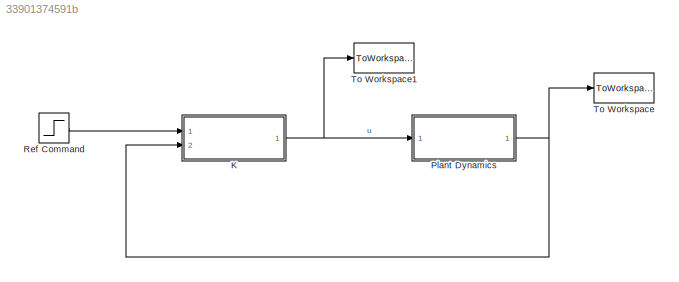
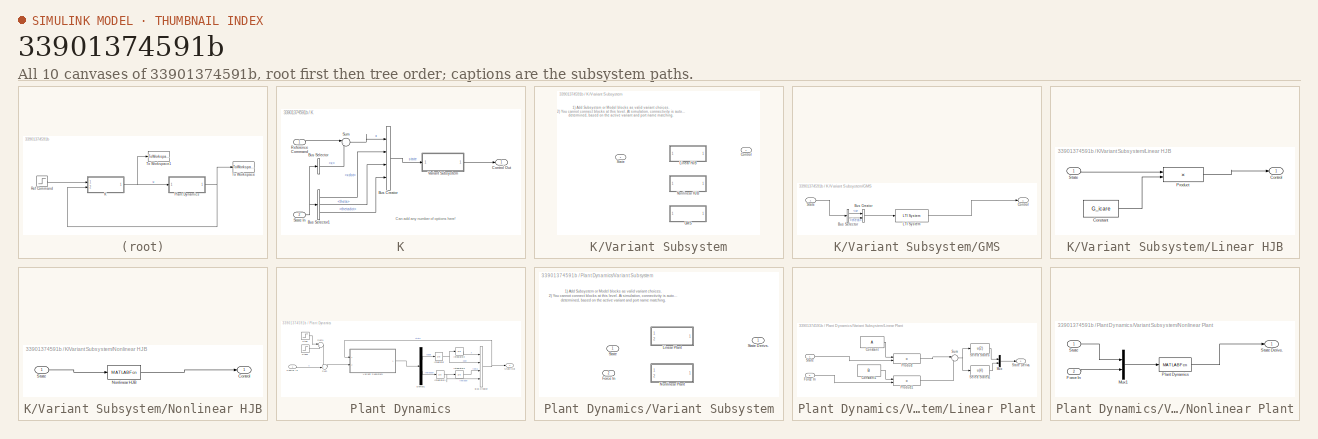
[diagram: thumbnail index - all 10 canvases of the model, root first then tree order]
MODEL slx_33901374591b
KIND model
CONFIG AbsTol = auto
CONFIG EnableMultiTasking = off
CONFIG FixedStep = auto
CONFIG MaxStep = 0.01
CONFIG MinStep = auto
CONFIG RelTol = 1e-3
CONFIG SampleTimeConstraint = Unconstrained
CONFIG SolverName = VariableStepAuto
CONFIG StartTime = 0.0
CONFIG StopTime = 30
BLOCK [SubSystem] K
  Ports = [2, 1]
  RequestExecContextInheritance = off
BLOCK [BusCreator] K/Bus Creator
  DisplayOption = bar
  InheritFromInputs = on
  Inputs = 4
  Ports = [4, 1]
BLOCK [BusSelector] K/Bus Selector
  OutputSignals = x
  Ports = [1, 1]
BLOCK [BusSelector] K/Bus Selector1
  OutputSignals = xdot,theta,thetadot
  Ports = [1, 3]
BLOCK [Outport] K/Control Out
BLOCK [Inport] K/Reference Command
BLOCK [Inport] K/State In
  Port = 2
BLOCK [Sum] K/Sum
  Inputs = |-+
  Ports = [2, 1]
BLOCK [SubSystem] K/Variant Subsystem
  Ports = [1, 1]
  RequestExecContextInheritance = off
  Variant = on
BLOCK [Outport] K/Variant Subsystem/Control
BLOCK [SubSystem] K/Variant Subsystem/GMS
  Ports = [1, 1]
  RequestExecContextInheritance = off
  VariantControl = v_gms
BLOCK [BusCreator] K/Variant Subsystem/GMS/Bus Creator
  DisplayOption = bar
  InheritFromInputs = on
  Inputs = 2
  Ports = [2, 1]
BLOCK [BusSelector] K/Variant Subsystem/GMS/Bus Selector
  OutputSignals = x,theta
  Ports = [1, 2]
BLOCK [Outport] K/Variant Subsystem/GMS/Control
BLOCK [Reference] K/Variant Subsystem/GMS/LTI System  REF=cstblocks/LTI System
  Ports = [1, 1]
  SourceBlock = cstblocks/LTI System
  SourceProductBaseCode = CT
  SourceType = LTI Block
BLOCK [Inport] K/Variant Subsystem/GMS/State
BLOCK [SubSystem] K/Variant Subsystem/Linear HJB
  Ports = [1, 1]
  RequestExecContextInheritance = off
  VariantControl = v_lin_hjb
BLOCK [Constant] K/Variant Subsystem/Linear HJB/Constant
  Value = G_icare
BLOCK [Outport] K/Variant Subsystem/Linear HJB/Control
BLOCK [Product] K/Variant Subsystem/Linear HJB/Product
  Multiplication = Matrix(*)
  Ports = [2, 1]
BLOCK [Inport] K/Variant Subsystem/Linear HJB/State
BLOCK [SubSystem] K/Variant Subsystem/Nonlinear HJB
  Ports = [1, 1]
  RequestExecContextInheritance = off
  VariantControl = v_nonlin_hjb
BLOCK [Outport] K/Variant Subsystem/Nonlinear HJB/Control
BLOCK [MATLABFcn] K/Variant Subsystem/Nonlinear HJB/Nonlinear HJB
  MATLABFcn = nln_hjb
  Ports = [1, 1]
BLOCK [Inport] K/Variant Subsystem/Nonlinear HJB/State
BLOCK [Inport] K/Variant Subsystem/State
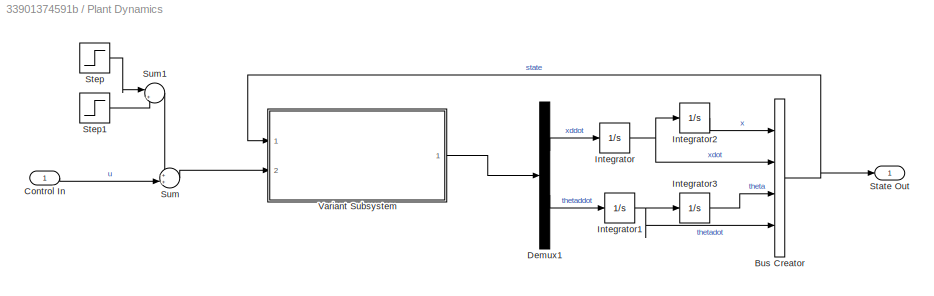
BLOCK [SubSystem] Plant Dynamics
  Ports = [1, 1]
  RequestExecContextInheritance = off
BLOCK [BusCreator] Plant Dynamics/Bus Creator
  DisplayOption = bar
  InheritFromInputs = on
  Inputs = 4
  Ports = [4, 1]
BLOCK [Inport] Plant Dynamics/Control In
BLOCK [Demux] Plant Dynamics/Demux1
  Outputs = 2
  Ports = [1, 2]
BLOCK [Integrator] Plant Dynamics/Integrator
  InitialCondition = x0(2)
  Ports = [1, 1]
BLOCK [Integrator] Plant Dynamics/Integrator1
  InitialCondition = x0(4)
  Ports = [1, 1]
BLOCK [Integrator] Plant Dynamics/Integrator2
  InitialCondition = x0(1)
  Ports = [1, 1]
BLOCK [Integrator] Plant Dynamics/Integrator3
  InitialCondition = x0(3)
  Ports = [1, 1]
BLOCK [Outport] Plant Dynamics/State Out
  VectorParamsAs1DForOutWhenUnconnected = off
BLOCK [Step] Plant Dynamics/Step
  After = dF_amp
  SampleTime = 0
  Time = 0
BLOCK [Step] Plant Dynamics/Step1
  After = dF_amp
  SampleTime = 0
  Time = dF_tf
BLOCK [Sum] Plant Dynamics/Sum
  Inputs = ++|
  Ports = [2, 1]
BLOCK [Sum] Plant Dynamics/Sum1
  Inputs = |+-
  Ports = [2, 1]
BLOCK [SubSystem] Plant Dynamics/Variant Subsystem
  Ports = [2, 1]
  RequestExecContextInheritance = off
  Variant = on
BLOCK [Inport] Plant Dynamics/Variant Subsystem/Force In
  Port = 2
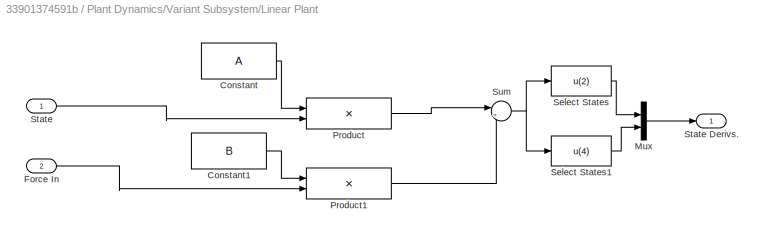
BLOCK [SubSystem] Plant Dynamics/Variant Subsystem/Linear Plant
  Ports = [2, 1]
  RequestExecContextInheritance = off
  VariantControl = v_linear_plant
BLOCK [Constant] Plant Dynamics/Variant Subsystem/Linear Plant/Constant
  Value = A
BLOCK [Constant] Plant Dynamics/Variant Subsystem/Linear Plant/Constant1
  Value = B
BLOCK [Inport] Plant Dynamics/Variant Subsystem/Linear Plant/Force In
  Port = 2
BLOCK [Mux] Plant Dynamics/Variant Subsystem/Linear Plant/Mux
  DisplayOption = bar
  Inputs = 2
  Ports = [2, 1]
BLOCK [Product] Plant Dynamics/Variant Subsystem/Linear Plant/Product
  Multiplication = Matrix(*)
  Ports = [2, 1]
BLOCK [Product] Plant Dynamics/Variant Subsystem/Linear Plant/Product1
  Multiplication = Matrix(*)
  Ports = [2, 1]
BLOCK [Fcn] Plant Dynamics/Variant Subsystem/Linear Plant/Select States
  Expr = u(2)
BLOCK [Fcn] Plant Dynamics/Variant Subsystem/Linear Plant/Select States1
  Expr = u(4)
BLOCK [Inport] Plant Dynamics/Variant Subsystem/Linear Plant/State
BLOCK [Outport] Plant Dynamics/Variant Subsystem/Linear Plant/State Derivs.
BLOCK [Sum] Plant Dynamics/Variant Subsystem/Linear Plant/Sum
  Inputs = |++
  Ports = [2, 1]
BLOCK [SubSystem] Plant Dynamics/Variant Subsystem/Nonlinear Plant
  Ports = [2, 1]
  RequestExecContextInheritance = off
  VariantControl = v_nonlinear_plant
BLOCK [Inport] Plant Dynamics/Variant Subsystem/Nonlinear Plant/Force In
  Port = 2
BLOCK [Mux] Plant Dynamics/Variant Subsystem/Nonlinear Plant/Mux1
  DisplayOption = bar
  Inputs = 2
  Ports = [2, 1]
BLOCK [MATLABFcn] Plant Dynamics/Variant Subsystem/Nonlinear Plant/Plant Dynamics
  MATLABFcn = cip_dyn
  Ports = [1, 1]
BLOCK [Inport] Plant Dynamics/Variant Subsystem/Nonlinear Plant/State
BLOCK [Outport] Plant Dynamics/Variant Subsystem/Nonlinear Plant/State Derivs.
BLOCK [Inport] Plant Dynamics/Variant Subsystem/State
BLOCK [Outport] Plant Dynamics/Variant Subsystem/State Derivs.
BLOCK [Step] Ref Command
  After = r
  SampleTime = 0
  Time = 0
BLOCK [ToWorkspace] To Workspace
  FixptAsFi = on
  MaxDataPoints = inf
  Ports = [1]
  SampleTime = -1
  SaveFormat = Timeseries
  VariableName = xvec
BLOCK [ToWorkspace] To Workspace1
  FixptAsFi = on
  MaxDataPoints = inf
  Ports = [1]
  SampleTime = -1
  SaveFormat = Timeseries
  VariableName = uvec
ANNOTATION K: Can add any number of options here!
ANNOTATION K/Variant Subsystem: 1) Add Subsystem or Model blocks as valid variant choices. 2) You cannot connect blocks at this level. At simulation, connectivity is automatically determined, based on the active variant and port name matching.
ANNOTATION Plant Dynamics/Variant Subsystem: 1) Add Subsystem or Model blocks as valid variant choices. 2) You cannot connect blocks at this level. At simulation, connectivity is automatically determined, based on the active variant and port name matching.
LINE K/Bus Creator:1 -> K/Variant Subsystem:1
LINE K/Bus Selector1:1 -> K/Bus Creator:2
LINE K/Bus Selector1:2 -> K/Bus Creator:3
LINE K/Bus Selector1:3 -> K/Bus Creator:4
LINE K/Bus Selector:1 -> K/Sum:2
LINE K/Reference Command:1 -> K/Sum:1
NET K/State In:1 -> K/Bus Selector1:1, K/Bus Selector:1
LINE K/Sum:1 -> K/Bus Creator:1
LINE K/Variant Subsystem/GMS/Bus Creator:1 -> K/Variant Subsystem/GMS/LTI System:1
LINE K/Variant Subsystem/GMS/Bus Selector:1 -> K/Variant Subsystem/GMS/Bus Creator:1
LINE K/Variant Subsystem/GMS/Bus Selector:2 -> K/Variant Subsystem/GMS/Bus Creator:2
LINE K/Variant Subsystem/GMS/LTI System:1 -> K/Variant Subsystem/GMS/Control:1
LINE K/Variant Subsystem/GMS/State:1 -> K/Variant Subsystem/GMS/Bus Selector:1
LINE K/Variant Subsystem/Linear HJB/Constant:1 -> K/Variant Subsystem/Linear HJB/Product:2
LINE K/Variant Subsystem/Linear HJB/Product:1 -> K/Variant Subsystem/Linear HJB/Control:1
LINE K/Variant Subsystem/Linear HJB/State:1 -> K/Variant Subsystem/Linear HJB/Product:1
LINE K/Variant Subsystem/Nonlinear HJB/Nonlinear HJB:1 -> K/Variant Subsystem/Nonlinear HJB/Control:1
LINE K/Variant Subsystem/Nonlinear HJB/State:1 -> K/Variant Subsystem/Nonlinear HJB/Nonlinear HJB:1
LINE K/Variant Subsystem:1 -> K/Control Out:1
NET K:1 -> Plant Dynamics:1, To Workspace1:1
NET Plant Dynamics/Bus Creator:1 -> Plant Dynamics/State Out:1, Plant Dynamics/Variant Subsystem:1
LINE Plant Dynamics/Control In:1 -> Plant Dynamics/Sum:2
LINE Plant Dynamics/Demux1:1 -> Plant Dynamics/Integrator:1
LINE Plant Dynamics/Demux1:2 -> Plant Dynamics/Integrator1:1
NET Plant Dynamics/Integrator1:1 -> Plant Dynamics/Bus Creator:4, Plant Dynamics/Integrator3:1
LINE Plant Dynamics/Integrator2:1 -> Plant Dynamics/Bus Creator:1
LINE Plant Dynamics/Integrator3:1 -> Plant Dynamics/Bus Creator:3
NET Plant Dynamics/Integrator:1 -> Plant Dynamics/Bus Creator:2, Plant Dynamics/Integrator2:1
LINE Plant Dynamics/Step1:1 -> Plant Dynamics/Sum1:2
LINE Plant Dynamics/Step:1 -> Plant Dynamics/Sum1:1
LINE Plant Dynamics/Sum1:1 -> Plant Dynamics/Sum:1
LINE Plant Dynamics/Sum:1 -> Plant Dynamics/Variant Subsystem:2
LINE Plant Dynamics/Variant Subsystem/Linear Plant/Constant1:1 -> Plant Dynamics/Variant Subsystem/Linear Plant/Product1:1
LINE Plant Dynamics/Variant Subsystem/Linear Plant/Constant:1 -> Plant Dynamics/Variant Subsystem/Linear Plant/Product:1
LINE Plant Dynamics/Variant Subsystem/Linear Plant/Force In:1 -> Plant Dynamics/Variant Subsystem/Linear Plant/Product1:2
LINE Plant Dynamics/Variant Subsystem/Linear Plant/Mux:1 -> Plant Dynamics/Variant Subsystem/Linear Plant/State Derivs.:1
LINE Plant Dynamics/Variant Subsystem/Linear Plant/Product1:1 -> Plant Dynamics/Variant Subsystem/Linear Plant/Sum:2
LINE Plant Dynamics/Variant Subsystem/Linear Plant/Product:1 -> Plant Dynamics/Variant Subsystem/Linear Plant/Sum:1
LINE Plant Dynamics/Variant Subsystem/Linear Plant/Select States1:1 -> Plant Dynamics/Variant Subsystem/Linear Plant/Mux:2
LINE Plant Dynamics/Variant Subsystem/Linear Plant/Select States:1 -> Plant Dynamics/Variant Subsystem/Linear Plant/Mux:1
LINE Plant Dynamics/Variant Subsystem/Linear Plant/State:1 -> Plant Dynamics/Variant Subsystem/Linear Plant/Product:2
NET Plant Dynamics/Variant Subsystem/Linear Plant/Sum:1 -> Plant Dynamics/Variant Subsystem/Linear Plant/Select States1:1, Plant Dynamics/Variant Subsystem/Linear Plant/Select States:1
LINE Plant Dynamics/Variant Subsystem/Nonlinear Plant/Force In:1 -> Plant Dynamics/Variant Subsystem/Nonlinear Plant/Mux1:2
LINE Plant Dynamics/Variant Subsystem/Nonlinear Plant/Mux1:1 -> Plant Dynamics/Variant Subsystem/Nonlinear Plant/Plant Dynamics:1
LINE Plant Dynamics/Variant Subsystem/Nonlinear Plant/Plant Dynamics:1 -> Plant Dynamics/Variant Subsystem/Nonlinear Plant/State Derivs.:1
LINE Plant Dynamics/Variant Subsystem/Nonlinear Plant/State:1 -> Plant Dynamics/Variant Subsystem/Nonlinear Plant/Mux1:1
LINE Plant Dynamics/Variant Subsystem:1 -> Plant Dynamics/Demux1:1
NET Plant Dynamics:1 -> K:2, To Workspace:1
LINE Ref Command:1 -> K:1
note: NET lines group one-source signal fan-out (src -> all destinations, sorted); 1:1 wires keep LINE
